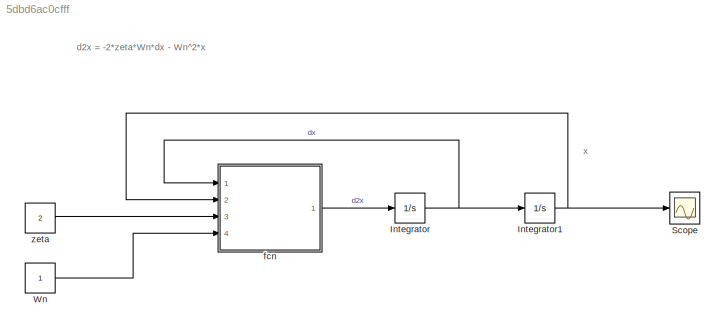
MODEL slx_5dbd6ac0cfff
KIND model
CONFIG AbsTol = auto
CONFIG FixedStep = auto
CONFIG MaxStep = auto
CONFIG MinStep = auto
CONFIG RelTol = 1e-3
CONFIG SampleTimeConstraint = Unconstrained
CONFIG Solver = VariableStepAuto
CONFIG SolverMode = Auto
CONFIG SolverName = VariableStepAuto
CONFIG StartTime = 0.0
CONFIG StopTime = 25
BLOCK [Integrator] Integrator
  Ports = [1, 1]
BLOCK [Integrator] Integrator1
  InitialCondition = 5
  Ports = [1, 1]
BLOCK [Scope] Scope
  Ports = [1]
  ScopeSpecificationString = Simulink.scopes.TimeScopeBlockCfg('CurrentConfiguration', extmgr.ConfigurationSet(extmgr.Configuration('Core','General UI',true),extmgr.Configuration('Core','Source UI',true),extmgr.Configuration('Sources','WiredSimulink',true),extmgr.Configuration('Visuals','Time Domain',true),extmgr.Configuration('Tools','Plot Navigation',true),extmgr.Configuration('Tools','Measurements',true,'Version','2016a'))...<+89ch>
BLOCK [Constant] Wn
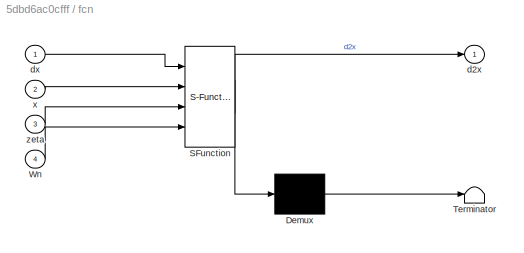
BLOCK [SubSystem] fcn 
  ErrorFcn = Stateflow.Translate.translate
  PermitHierarchicalResolution = ExplicitOnly
  Ports = [4, 1]
  RequestExecContextInheritance = off
  SFBlockType = MATLAB Function
  TreatAsAtomicUnit = on
  Variant = off
BLOCK [Demux] fcn / Demux 
  Outputs = 1
  Ports = [1, 1]
BLOCK [S-Function] fcn / SFunction 
  EnableBusSupport = on
  FunctionName = sf_sfun
  PortCounts = [4 2]
  Ports = [4, 2]
  SFunctionDeploymentMode = off
  Tag = Stateflow S-Function ODEfunction 2
BLOCK [Terminator] fcn / Terminator 
BLOCK [Inport] fcn /Wn
  IconDisplay = Port number
  Port = 4
BLOCK [Outport] fcn /d2x
  IconDisplay = Port number
BLOCK [Inport] fcn /dx
  IconDisplay = Port number
BLOCK [Inport] fcn /x
  IconDisplay = Port number
  Port = 2
BLOCK [Inport] fcn /zeta
  IconDisplay = Port number
  Port = 3
BLOCK [Constant] zeta
  Value = 2
ANNOTATION (root): d2x = -2*zeta*Wn*dx - Wn^2*x
ANNOTATION (root): x
NET Integrator1:1 -> Scope:1, fcn :2
NET Integrator:1 -> Integrator1:1, fcn :1
LINE Wn:1 -> fcn :4
LINE fcn :1 -> Integrator:1
LINE zeta:1 -> fcn :3
note: NET lines group one-source signal fan-out (src -> all destinations, sorted); 1:1 wires keep LINE
CHART fcn  states=1 transitions=1
  STATE_LABEL 'eML_blk_kernel()'
  STATE_LABEL 'SCRIPT:\nfunction d2x = fcn(dx,x,zeta,Wn)\n%#codegen\nd2x = -2*zeta*Wn*dx - Wn^2*x;\n'
